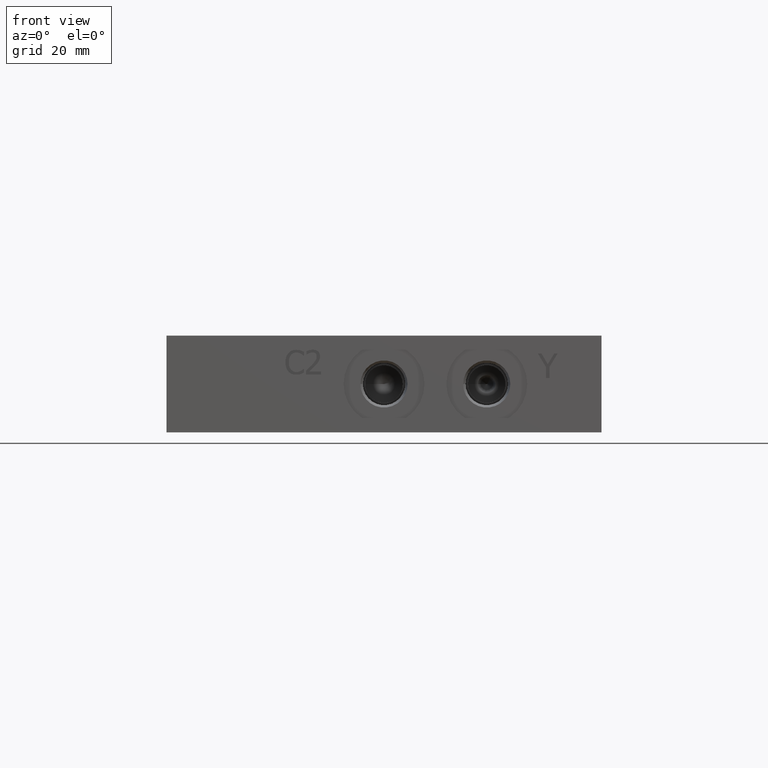
[diagram: clean part render]
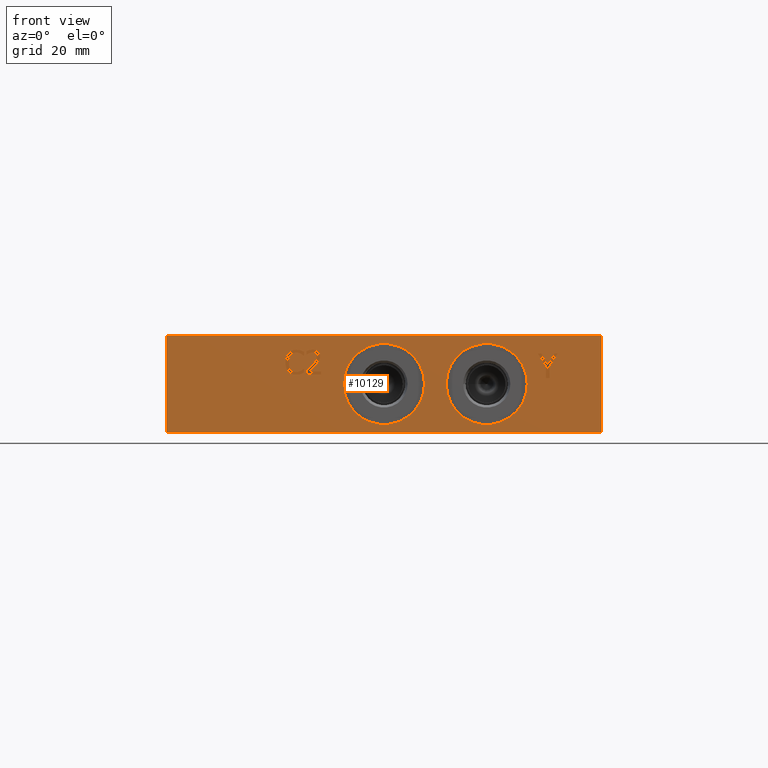
[diagram: same view with one face highlighted and labeled with its STEP entity id]
A machine part, front view. The second image highlights one B-rep face of the part: STEP entity #10129.
In plain terms, the highlighted planar face has unit normal (0, -1, 0).
Its self-contained STEP definition (entity closure, byte-faithful):
#80=CIRCLE('',#10452,10.6426);
#81=CIRCLE('',#10453,10.6426);
#91=CIRCLE('',#10471,10.6426);
#92=CIRCLE('',#10472,10.6426);
#357=FACE_BOUND('',#1801,.T.);
#358=FACE_BOUND('',#1802,.T.);
#359=FACE_BOUND('',#1803,.T.);
#360=FACE_BOUND('',#1804,.T.);
#361=FACE_BOUND('',#1805,.T.);
#534=B_SPLINE_CURVE_WITH_KNOTS('',2,(#15582,#15583,#15584,#15585),
 .UNSPECIFIED.,.F.,.F.,(3,1,3),(0.,1.,2.),.UNSPECIFIED.);
#536=B_SPLINE_CURVE_WITH_KNOTS('',2,(#15603,#15604,#15605,#15606),
 .UNSPECIFIED.,.F.,.F.,(3,1,3),(0.,1.,2.),.UNSPECIFIED.);
#538=B_SPLINE_CURVE_WITH_KNOTS('',2,(#15634,#15635,#15636,#15637),
 .UNSPECIFIED.,.F.,.F.,(3,1,3),(0.,1.,2.),.UNSPECIFIED.);
#540=B_SPLINE_CURVE_WITH_KNOTS('',2,(#15653,#15654,#15655,#15656),
 .UNSPECIFIED.,.F.,.F.,(3,1,3),(0.,1.,2.),.UNSPECIFIED.);
#542=B_SPLINE_CURVE_WITH_KNOTS('',2,(#15672,#15673,#15674,#15675),
 .UNSPECIFIED.,.F.,.F.,(3,1,3),(0.,1.,2.),.UNSPECIFIED.);
#544=B_SPLINE_CURVE_WITH_KNOTS('',2,(#15691,#15692,#15693,#15694),
 .UNSPECIFIED.,.F.,.F.,(3,1,3),(0.,1.,2.),.UNSPECIFIED.);
#546=B_SPLINE_CURVE_WITH_KNOTS('',2,(#15710,#15711,#15712,#15713),
 .UNSPECIFIED.,.F.,.F.,(3,1,3),(0.,1.,2.),.UNSPECIFIED.);
#548=B_SPLINE_CURVE_WITH_KNOTS('',2,(#15729,#15730,#15731,#15732),
 .UNSPECIFIED.,.F.,.F.,(3,1,3),(0.,1.,2.),.UNSPECIFIED.);
#550=B_SPLINE_CURVE_WITH_KNOTS('',2,(#15748,#15749,#15750,#15751),
 .UNSPECIFIED.,.F.,.F.,(3,1,3),(0.,1.,2.),.UNSPECIFIED.);
#552=B_SPLINE_CURVE_WITH_KNOTS('',2,(#15767,#15768,#15769,#15770),
 .UNSPECIFIED.,.F.,.F.,(3,1,3),(0.,1.,2.),.UNSPECIFIED.);
#554=B_SPLINE_CURVE_WITH_KNOTS('',2,(#15798,#15799,#15800,#15801),
 .UNSPECIFIED.,.F.,.F.,(3,1,3),(0.,1.,2.),.UNSPECIFIED.);
#556=B_SPLINE_CURVE_WITH_KNOTS('',2,(#15817,#15818,#15819,#15820),
 .UNSPECIFIED.,.F.,.F.,(3,1,3),(0.,1.,2.),.UNSPECIFIED.);
#558=B_SPLINE_CURVE_WITH_KNOTS('',2,(#15836,#15837,#15838,#15839),
 .UNSPECIFIED.,.F.,.F.,(3,1,3),(0.,1.,2.),.UNSPECIFIED.);
#560=B_SPLINE_CURVE_WITH_KNOTS('',2,(#15855,#15856,#15857,#15858),
 .UNSPECIFIED.,.F.,.F.,(3,1,3),(0.,1.,2.),.UNSPECIFIED.);
#562=B_SPLINE_CURVE_WITH_KNOTS('',2,(#15874,#15875,#15876,#15877),
 .UNSPECIFIED.,.F.,.F.,(3,1,3),(0.,1.,2.),.UNSPECIFIED.);
#564=B_SPLINE_CURVE_WITH_KNOTS('',2,(#15892,#15893,#15894,#15895),
 .UNSPECIFIED.,.F.,.F.,(3,1,3),(0.,1.,2.),.UNSPECIFIED.);
#566=B_SPLINE_CURVE_WITH_KNOTS('',2,(#15925,#15926,#15927,#15928),
 .UNSPECIFIED.,.F.,.F.,(3,1,3),(0.,1.,2.),.UNSPECIFIED.);
#568=B_SPLINE_CURVE_WITH_KNOTS('',2,(#15944,#15945,#15946,#15947),
 .UNSPECIFIED.,.F.,.F.,(3,1,3),(0.,1.,2.),.UNSPECIFIED.);
#570=B_SPLINE_CURVE_WITH_KNOTS('',2,(#15963,#15964,#15965,#15966),
 .UNSPECIFIED.,.F.,.F.,(3,1,3),(0.,1.,2.),.UNSPECIFIED.);
#572=B_SPLINE_CURVE_WITH_KNOTS('',2,(#15982,#15983,#15984,#15985),
 .UNSPECIFIED.,.F.,.F.,(3,1,3),(0.,1.,2.),.UNSPECIFIED.);
#574=B_SPLINE_CURVE_WITH_KNOTS('',2,(#16001,#16002,#16003,#16004),
 .UNSPECIFIED.,.F.,.F.,(3,1,3),(0.,1.,2.),.UNSPECIFIED.);
#576=B_SPLINE_CURVE_WITH_KNOTS('',2,(#16032,#16033,#16034,#16035),
 .UNSPECIFIED.,.F.,.F.,(3,1,3),(0.,1.,2.),.UNSPECIFIED.);
#578=B_SPLINE_CURVE_WITH_KNOTS('',2,(#16051,#16052,#16053,#16054),
 .UNSPECIFIED.,.F.,.F.,(3,1,3),(0.,1.,2.),.UNSPECIFIED.);
#580=B_SPLINE_CURVE_WITH_KNOTS('',2,(#16070,#16071,#16072,#16073),
 .UNSPECIFIED.,.F.,.F.,(3,1,3),(0.,1.,2.),.UNSPECIFIED.);
#582=B_SPLINE_CURVE_WITH_KNOTS('',2,(#16089,#16090,#16091,#16092),
 .UNSPECIFIED.,.F.,.F.,(3,1,3),(0.,1.,2.),.UNSPECIFIED.);
#584=B_SPLINE_CURVE_WITH_KNOTS('',2,(#16108,#16109,#16110,#16111),
 .UNSPECIFIED.,.F.,.F.,(3,1,3),(0.,1.,2.),.UNSPECIFIED.);
#586=B_SPLINE_CURVE_WITH_KNOTS('',2,(#16127,#16128,#16129,#16130),
 .UNSPECIFIED.,.F.,.F.,(3,1,3),(0.,1.,2.),.UNSPECIFIED.);
#1245=FACE_OUTER_BOUND('',#1800,.T.);
#1800=EDGE_LOOP('',(#8810,#8811,#8812,#8813));
#1801=EDGE_LOOP('',(#8814,#8815,#8816,#8817,#8818,#8819,#8820,#8821,#8822));
#1802=EDGE_LOOP('',(#8823,#8824,#8825,#8826,#8827,#8828,#8829,#8830,#8831,
#8832,#8833,#8834,#8835,#8836,#8837,#8838,#8839,#8840,#8841,#8842));
#1803=EDGE_LOOP('',(#8843,#8844,#8845,#8846,#8847,#8848,#8849,#8850,#8851,
#8852,#8853,#8854,#8855,#8856,#8857,#8858,#8859));
#1804=EDGE_LOOP('',(#8860,#8861));
#1805=EDGE_LOOP('',(#8862,#8863));
#2144=LINE('',#14609,#3110);
#2522=LINE('',#15520,#3488);
#2526=LINE('',#15528,#3492);
#2529=LINE('',#15534,#3495);
#2532=LINE('',#15540,#3498);
#2535=LINE('',#15546,#3501);
#2538=LINE('',#15552,#3504);
#2541=LINE('',#15558,#3507);
#2544=LINE('',#15564,#3510);
#2547=LINE('',#15569,#3513);
#2552=LINE('',#15615,#3518);
#2555=LINE('',#15621,#3521);
#2566=LINE('',#15779,#3532);
#2569=LINE('',#15785,#3535);
#2577=LINE('',#15904,#3543);
#2581=LINE('',#15912,#3547);
#2589=LINE('',#16013,#3555);
#2592=LINE('',#16019,#3558);
#2601=LINE('',#16139,#3567);
#2604=LINE('',#16144,#3570);
#2797=LINE('',#17270,#3763);
#2802=LINE('',#17279,#3768);
#2803=LINE('',#17280,#3769);
#3110=VECTOR('',#11234,10.);
#3488=VECTOR('',#11894,10.);
#3492=VECTOR('',#11900,10.);
#3495=VECTOR('',#11905,10.);
#3498=VECTOR('',#11910,10.);
#3501=VECTOR('',#11915,10.);
#3504=VECTOR('',#11920,10.);
#3507=VECTOR('',#11925,10.);
#3510=VECTOR('',#11930,10.);
#3513=VECTOR('',#11935,10.);
#3518=VECTOR('',#11944,10.);
#3521=VECTOR('',#11949,10.);
#3532=VECTOR('',#11962,10.);
#3535=VECTOR('',#11967,10.);
#3543=VECTOR('',#11979,10.);
#3547=VECTOR('',#11985,10.);
#3555=VECTOR('',#11995,10.);
#3558=VECTOR('',#12000,10.);
#3567=VECTOR('',#12011,10.);
#3570=VECTOR('',#12016,10.);
#3763=VECTOR('',#12897,10.);
#3768=VECTOR('',#12908,10.);
#3769=VECTOR('',#12909,10.);
#4056=VERTEX_POINT('',#14602);
#4059=VERTEX_POINT('',#14607);
#4322=VERTEX_POINT('',#15518);
#4323=VERTEX_POINT('',#15519);
#4326=VERTEX_POINT('',#15527);
#4328=VERTEX_POINT('',#15533);
#4330=VERTEX_POINT('',#15539);
#4332=VERTEX_POINT('',#15545);
#4334=VERTEX_POINT('',#15551);
#4336=VERTEX_POINT('',#15557);
#4338=VERTEX_POINT('',#15563);
#4340=VERTEX_POINT('',#15580);
#4341=VERTEX_POINT('',#15581);
#4344=VERTEX_POINT('',#15602);
#4346=VERTEX_POINT('',#15614);
#4348=VERTEX_POINT('',#15620);
#4350=VERTEX_POINT('',#15633);
#4352=VERTEX_POINT('',#15652);
#4354=VERTEX_POINT('',#15671);
#4356=VERTEX_POINT('',#15690);
#4358=VERTEX_POINT('',#15709);
#4360=VERTEX_POINT('',#15728);
#4362=VERTEX_POINT('',#15747);
#4364=VERTEX_POINT('',#15766);
#4366=VERTEX_POINT('',#15778);
#4368=VERTEX_POINT('',#15784);
#4370=VERTEX_POINT('',#15797);
#4372=VERTEX_POINT('',#15816);
#4374=VERTEX_POINT('',#15835);
#4376=VERTEX_POINT('',#15854);
#4378=VERTEX_POINT('',#15873);
#4380=VERTEX_POINT('',#15902);
#4381=VERTEX_POINT('',#15903);
#4384=VERTEX_POINT('',#15911);
#4386=VERTEX_POINT('',#15924);
#4388=VERTEX_POINT('',#15943);
#4390=VERTEX_POINT('',#15962);
#4392=VERTEX_POINT('',#15981);
#4394=VERTEX_POINT('',#16000);
#4396=VERTEX_POINT('',#16012);
#4398=VERTEX_POINT('',#16018);
#4400=VERTEX_POINT('',#16031);
#4402=VERTEX_POINT('',#16050);
#4404=VERTEX_POINT('',#16069);
#4406=VERTEX_POINT('',#16088);
#4408=VERTEX_POINT('',#16107);
#4410=VERTEX_POINT('',#16126);
#4412=VERTEX_POINT('',#16138);
#4516=VERTEX_POINT('',#16677);
#4517=VERTEX_POINT('',#16678);
#4528=VERTEX_POINT('',#16715);
#4529=VERTEX_POINT('',#16716);
#4729=VERTEX_POINT('',#17267);
#4730=VERTEX_POINT('',#17269);
#5164=EDGE_CURVE('',#4056,#4059,#2144,.T.);
#5558=EDGE_CURVE('',#4322,#4323,#2522,.T.);
#5562=EDGE_CURVE('',#4326,#4322,#2526,.T.);
#5565=EDGE_CURVE('',#4328,#4326,#2529,.T.);
#5568=EDGE_CURVE('',#4330,#4328,#2532,.T.);
#5571=EDGE_CURVE('',#4332,#4330,#2535,.T.);
#5574=EDGE_CURVE('',#4334,#4332,#2538,.T.);
#5577=EDGE_CURVE('',#4336,#4334,#2541,.T.);
#5580=EDGE_CURVE('',#4338,#4336,#2544,.T.);
#5583=EDGE_CURVE('',#4323,#4338,#2547,.T.);
#5585=EDGE_CURVE('',#4340,#4341,#534,.T.);
#5589=EDGE_CURVE('',#4344,#4340,#536,.T.);
#5592=EDGE_CURVE('',#4346,#4344,#2552,.T.);
#5595=EDGE_CURVE('',#4348,#4346,#2555,.T.);
#5598=EDGE_CURVE('',#4350,#4348,#538,.T.);
#5601=EDGE_CURVE('',#4352,#4350,#540,.T.);
#5604=EDGE_CURVE('',#4354,#4352,#542,.T.);
#5607=EDGE_CURVE('',#4356,#4354,#544,.T.);
#5610=EDGE_CURVE('',#4358,#4356,#546,.T.);
#5613=EDGE_CURVE('',#4360,#4358,#548,.T.);
#5616=EDGE_CURVE('',#4362,#4360,#550,.T.);
#5619=EDGE_CURVE('',#4364,#4362,#552,.T.);
#5622=EDGE_CURVE('',#4366,#4364,#2566,.T.);
#5625=EDGE_CURVE('',#4368,#4366,#2569,.T.);
#5628=EDGE_CURVE('',#4370,#4368,#554,.T.);
#5631=EDGE_CURVE('',#4372,#4370,#556,.T.);
#5634=EDGE_CURVE('',#4374,#4372,#558,.T.);
#5637=EDGE_CURVE('',#4376,#4374,#560,.T.);
#5640=EDGE_CURVE('',#4378,#4376,#562,.T.);
#5643=EDGE_CURVE('',#4341,#4378,#564,.T.);
#5645=EDGE_CURVE('',#4380,#4381,#2577,.T.);
#5649=EDGE_CURVE('',#4384,#4380,#2581,.T.);
#5652=EDGE_CURVE('',#4386,#4384,#566,.T.);
#5655=EDGE_CURVE('',#4388,#4386,#568,.T.);
#5658=EDGE_CURVE('',#4390,#4388,#570,.T.);
#5661=EDGE_CURVE('',#4392,#4390,#572,.T.);
#5664=EDGE_CURVE('',#4394,#4392,#574,.T.);
#5667=EDGE_CURVE('',#4396,#4394,#2589,.T.);
#5670=EDGE_CURVE('',#4398,#4396,#2592,.T.);
#5673=EDGE_CURVE('',#4400,#4398,#576,.T.);
#5676=EDGE_CURVE('',#4402,#4400,#578,.T.);
#5679=EDGE_CURVE('',#4404,#4402,#580,.T.);
#5682=EDGE_CURVE('',#4406,#4404,#582,.T.);
#5685=EDGE_CURVE('',#4408,#4406,#584,.T.);
#5688=EDGE_CURVE('',#4410,#4408,#586,.T.);
#5691=EDGE_CURVE('',#4412,#4410,#2601,.T.);
#5694=EDGE_CURVE('',#4381,#4412,#2604,.T.);
#5847=EDGE_CURVE('',#4516,#4517,#80,.T.);
#5848=EDGE_CURVE('',#4517,#4516,#81,.T.);
#5865=EDGE_CURVE('',#4528,#4529,#91,.T.);
#5866=EDGE_CURVE('',#4529,#4528,#92,.T.);
#6125=EDGE_CURVE('',#4729,#4730,#2797,.T.);
#6130=EDGE_CURVE('',#4729,#4056,#2802,.T.);
#6131=EDGE_CURVE('',#4730,#4059,#2803,.T.);
#8810=ORIENTED_EDGE('',*,*,#6130,.T.);
#8811=ORIENTED_EDGE('',*,*,#5164,.T.);
#8812=ORIENTED_EDGE('',*,*,#6131,.F.);
#8813=ORIENTED_EDGE('',*,*,#6125,.F.);
#8814=ORIENTED_EDGE('',*,*,#5558,.T.);
#8815=ORIENTED_EDGE('',*,*,#5583,.T.);
#8816=ORIENTED_EDGE('',*,*,#5580,.T.);
#8817=ORIENTED_EDGE('',*,*,#5577,.T.);
#8818=ORIENTED_EDGE('',*,*,#5574,.T.);
#8819=ORIENTED_EDGE('',*,*,#5571,.T.);
#8820=ORIENTED_EDGE('',*,*,#5568,.T.);
#8821=ORIENTED_EDGE('',*,*,#5565,.T.);
#8822=ORIENTED_EDGE('',*,*,#5562,.T.);
#8823=ORIENTED_EDGE('',*,*,#5585,.T.);
#8824=ORIENTED_EDGE('',*,*,#5643,.T.);
#8825=ORIENTED_EDGE('',*,*,#5640,.T.);
#8826=ORIENTED_EDGE('',*,*,#5637,.T.);
#8827=ORIENTED_EDGE('',*,*,#5634,.T.);
#8828=ORIENTED_EDGE('',*,*,#5631,.T.);
#8829=ORIENTED_EDGE('',*,*,#5628,.T.);
#8830=ORIENTED_EDGE('',*,*,#5625,.T.);
#8831=ORIENTED_EDGE('',*,*,#5622,.T.);
#8832=ORIENTED_EDGE('',*,*,#5619,.T.);
#8833=ORIENTED_EDGE('',*,*,#5616,.T.);
#8834=ORIENTED_EDGE('',*,*,#5613,.T.);
#8835=ORIENTED_EDGE('',*,*,#5610,.T.);
#8836=ORIENTED_EDGE('',*,*,#5607,.T.);
#8837=ORIENTED_EDGE('',*,*,#5604,.T.);
#8838=ORIENTED_EDGE('',*,*,#5601,.T.);
#8839=ORIENTED_EDGE('',*,*,#5598,.T.);
#8840=ORIENTED_EDGE('',*,*,#5595,.T.);
#8841=ORIENTED_EDGE('',*,*,#5592,.T.);
#8842=ORIENTED_EDGE('',*,*,#5589,.T.);
#8843=ORIENTED_EDGE('',*,*,#5645,.T.);
#8844=ORIENTED_EDGE('',*,*,#5694,.T.);
#8845=ORIENTED_EDGE('',*,*,#5691,.T.);
#8846=ORIENTED_EDGE('',*,*,#5688,.T.);
#8847=ORIENTED_EDGE('',*,*,#5685,.T.);
#8848=ORIENTED_EDGE('',*,*,#5682,.T.);
#8849=ORIENTED_EDGE('',*,*,#5679,.T.);
#8850=ORIENTED_EDGE('',*,*,#5676,.T.);
#8851=ORIENTED_EDGE('',*,*,#5673,.T.);
#8852=ORIENTED_EDGE('',*,*,#5670,.T.);
#8853=ORIENTED_EDGE('',*,*,#5667,.T.);
#8854=ORIENTED_EDGE('',*,*,#5664,.T.);
#8855=ORIENTED_EDGE('',*,*,#5661,.T.);
#8856=ORIENTED_EDGE('',*,*,#5658,.T.);
#8857=ORIENTED_EDGE('',*,*,#5655,.T.);
#8858=ORIENTED_EDGE('',*,*,#5652,.T.);
#8859=ORIENTED_EDGE('',*,*,#5649,.T.);
#8860=ORIENTED_EDGE('',*,*,#5847,.T.);
#8861=ORIENTED_EDGE('',*,*,#5848,.T.);
#8862=ORIENTED_EDGE('',*,*,#5865,.T.);
#8863=ORIENTED_EDGE('',*,*,#5866,.T.);
#9230=PLANE('',#10743);
#10129=ADVANCED_FACE('',(#1245,#357,#358,#359,#360,#361),#9230,.T.);
#10452=AXIS2_PLACEMENT_3D('',#16679,#12230,#12231);
#10453=AXIS2_PLACEMENT_3D('',#16680,#12232,#12233);
#10471=AXIS2_PLACEMENT_3D('',#16717,#12275,#12276);
#10472=AXIS2_PLACEMENT_3D('',#16718,#12277,#12278);
#10743=AXIS2_PLACEMENT_3D('',#17278,#12906,#12907);
#11234=DIRECTION('',(0.,0.,1.));
#11894=DIRECTION('',(1.,0.,0.));
#11900=DIRECTION('',(0.512401080946015,0.,0.858746256029892));
#11905=DIRECTION('',(0.505352400516575,0.,-0.862913061259438));
#11910=DIRECTION('',(1.,0.,0.));
#11915=DIRECTION('',(-0.50909944989754,0.,0.860707703064183));
#11920=DIRECTION('',(0.,0.,1.));
#11925=DIRECTION('',(-1.,0.,0.));
#11930=DIRECTION('',(0.,0.,-1.));
#11935=DIRECTION('',(-0.518329263750966,0.,-0.85518113539728));
#11944=DIRECTION('',(0.,0.,-1.));
#11949=DIRECTION('',(1.,0.,0.));
#11962=DIRECTION('',(-1.,0.,0.));
#11967=DIRECTION('',(0.,0.,-1.));
#11979=DIRECTION('',(0.,0.,-1.));
#11985=DIRECTION('',(1.,0.,0.));
#11995=DIRECTION('',(0.,0.,1.));
#12000=DIRECTION('',(-1.,0.,0.));
#12011=DIRECTION('',(0.,0.,1.));
#12016=DIRECTION('',(-1.,0.,0.));
#12230=DIRECTION('center_axis',(0.,1.,0.));
#12231=DIRECTION('ref_axis',(1.,0.,0.));
#12232=DIRECTION('center_axis',(0.,1.,0.));
#12233=DIRECTION('ref_axis',(1.,0.,0.));
#12275=DIRECTION('center_axis',(0.,1.,0.));
#12276=DIRECTION('ref_axis',(1.,0.,0.));
#12277=DIRECTION('center_axis',(0.,1.,0.));
#12278=DIRECTION('ref_axis',(1.,0.,0.));
#12897=DIRECTION('',(0.,0.,1.));
#12906=DIRECTION('center_axis',(0.,-1.,0.));
#12907=DIRECTION('ref_axis',(1.,0.,0.));
#12908=DIRECTION('',(1.,0.,0.));
#12909=DIRECTION('',(1.,0.,0.));
#14602=CARTESIAN_POINT('',(114.3,0.,0.));
#14607=CARTESIAN_POINT('',(114.3,0.,25.4));
#14609=CARTESIAN_POINT('',(114.3,0.,0.));
#15518=CARTESIAN_POINT('',(101.83783162259,0.,20.6374999046326));
#15519=CARTESIAN_POINT('',(102.733212484345,0.,20.6374999046326));
#15520=CARTESIAN_POINT('',(50.9189158112948,0.,20.6374999046326));
#15527=CARTESIAN_POINT('',(100.170570707597,0.,17.8432941119134));
#15528=CARTESIAN_POINT('',(83.0947097055361,0.,-10.7745840489476));
#15533=CARTESIAN_POINT('',(98.5341849947337,0.,20.6374999046326));
#15534=CARTESIAN_POINT('',(90.4520540604594,0.,34.4381197074974));
#15539=CARTESIAN_POINT('',(97.5976371968058,0.,20.6374999046326));
#15540=CARTESIAN_POINT('',(48.7988185984029,0.,20.6374999046326));
#15545=CARTESIAN_POINT('',(99.7434637448056,0.,17.009663654417));
#15546=CARTESIAN_POINT('',(90.5442927648612,0.,32.5622189082798));
#15551=CARTESIAN_POINT('',(99.7434637448056,0.,14.2875));
#15552=CARTESIAN_POINT('',(99.7434637448056,0.,7.14375));
#15557=CARTESIAN_POINT('',(100.587385936345,0.,14.2875));
#15558=CARTESIAN_POINT('',(50.2936929681725,0.,14.2875));
#15563=CARTESIAN_POINT('',(100.587385936345,0.,17.0971433937839));
#15564=CARTESIAN_POINT('',(100.587385936345,0.,8.54857169689197));
#15569=CARTESIAN_POINT('',(84.3588467162756,0.,-9.67800045131883));
#15580=CARTESIAN_POINT('',(35.2118820268486,0.,15.2665012145279));
#15581=CARTESIAN_POINT('',(34.0797912821005,0.,15.0812500017509));
#15582=CARTESIAN_POINT('Ctrl Pts',(35.2118820268486,0.,15.2665012145279));
#15583=CARTESIAN_POINT('Ctrl Pts',(34.9340052076831,0.,15.1738756081394));
#15584=CARTESIAN_POINT('Ctrl Pts',(34.4605854416976,0.,15.0812500017509));
#15585=CARTESIAN_POINT('Ctrl Pts',(34.0797912821005,0.,15.0812500017509));
#15602=CARTESIAN_POINT('',(36.0558042183881,0.,15.6267119060387));
#15603=CARTESIAN_POINT('Ctrl Pts',(36.0558042183881,0.,15.6267119060387));
#15604=CARTESIAN_POINT('Ctrl Pts',(35.8448236705032,0.,15.5289404326286));
#15605=CARTESIAN_POINT('Ctrl Pts',(35.4743212449493,0.,15.3488350868732));
#15606=CARTESIAN_POINT('Ctrl Pts',(35.2118820268486,0.,15.2665012145279));
#15614=CARTESIAN_POINT('',(36.0558042183881,0.,16.6353018422688));
#15615=CARTESIAN_POINT('',(36.0558042183881,0.,8.3176509211344));
#15620=CARTESIAN_POINT('',(35.9940538141291,0.,16.6353018422688));
#15621=CARTESIAN_POINT('',(17.9970269070645,0.,16.6353018422688));
#15633=CARTESIAN_POINT('',(35.3199452343018,0.,16.1258610071322));
#15634=CARTESIAN_POINT('Ctrl Pts',(35.3199452343018,0.,16.1258610071322));
#15635=CARTESIAN_POINT('Ctrl Pts',(35.551509250273,0.,16.2596535496933));
#15636=CARTESIAN_POINT('Ctrl Pts',(35.896282340719,0.,16.5375303688587));
#15637=CARTESIAN_POINT('Ctrl Pts',(35.9940538141291,0.,16.6353018422688));
#15652=CARTESIAN_POINT('',(34.0900830161436,0.,15.8119631188156));
#15653=CARTESIAN_POINT('Ctrl Pts',(34.0900830161436,0.,15.8119631188156));
#15654=CARTESIAN_POINT('Ctrl Pts',(34.455439574676,0.,15.8119631188156));
#15655=CARTESIAN_POINT('Ctrl Pts',(35.0780894842874,0.,15.992068464571));
#15656=CARTESIAN_POINT('Ctrl Pts',(35.3199452343018,0.,16.1258610071322));
#15671=CARTESIAN_POINT('',(32.705844787338,0.,16.4449047624703));
#15672=CARTESIAN_POINT('Ctrl Pts',(32.705844787338,0.,16.4449047624703));
#15673=CARTESIAN_POINT('Ctrl Pts',(32.9734298724603,0.,16.1310068741537));
#15674=CARTESIAN_POINT('Ctrl Pts',(33.6887053884602,0.,15.8119631188156));
#15675=CARTESIAN_POINT('Ctrl Pts',(34.0900830161436,0.,15.8119631188156));
#15690=CARTESIAN_POINT('',(32.1192159468776,0.,18.3643131615205));
#15691=CARTESIAN_POINT('Ctrl Pts',(32.1192159468776,0.,18.3643131615205));
#15692=CARTESIAN_POINT('Ctrl Pts',(32.1192159468776,0.,17.7107880497795));
#15693=CARTESIAN_POINT('Ctrl Pts',(32.4331138351941,0.,16.7690943848299));
#15694=CARTESIAN_POINT('Ctrl Pts',(32.705844787338,0.,16.4449047624703));
#15709=CARTESIAN_POINT('',(32.6852613192517,0.,20.2837215605707));
#15710=CARTESIAN_POINT('Ctrl Pts',(32.6852613192517,0.,20.2837215605707));
#15711=CARTESIAN_POINT('Ctrl Pts',(32.4176762341294,0.,19.959531938211));
#15712=CARTESIAN_POINT('Ctrl Pts',(32.1192159468776,0.,18.9766713370888));
#15713=CARTESIAN_POINT('Ctrl Pts',(32.1192159468776,0.,18.3643131615205));
#15728=CARTESIAN_POINT('',(34.0900830161436,0.,20.9372466723116));
#15729=CARTESIAN_POINT('Ctrl Pts',(34.0900830161436,0.,20.9372466723116));
#15730=CARTESIAN_POINT('Ctrl Pts',(33.6835595214386,0.,20.9372466723116));
#15731=CARTESIAN_POINT('Ctrl Pts',(32.9579922713955,0.,20.6027653159088));
#15732=CARTESIAN_POINT('Ctrl Pts',(32.6852613192517,0.,20.2837215605707));
#15747=CARTESIAN_POINT('',(35.2736324311076,0.,20.6336405180383));
#15748=CARTESIAN_POINT('Ctrl Pts',(35.2736324311076,0.,20.6336405180383));
#15749=CARTESIAN_POINT('Ctrl Pts',(35.0317766810932,0.,20.7674330605994));
#15750=CARTESIAN_POINT('Ctrl Pts',(34.4605854416976,0.,20.9372466723116));
#15751=CARTESIAN_POINT('Ctrl Pts',(34.0900830161436,0.,20.9372466723116));
#15766=CARTESIAN_POINT('',(35.9889079471075,0.,20.1036162148153));
#15767=CARTESIAN_POINT('Ctrl Pts',(35.9889079471075,0.,20.1036162148153));
#15768=CARTESIAN_POINT('Ctrl Pts',(35.8756988726327,0.,20.2065335552469));
#15769=CARTESIAN_POINT('Ctrl Pts',(35.5257799151651,0.,20.4947021084555));
#15770=CARTESIAN_POINT('Ctrl Pts',(35.2736324311076,0.,20.6336405180383));
#15778=CARTESIAN_POINT('',(36.0558042183881,0.,20.1036162148153));
#15779=CARTESIAN_POINT('',(18.027902109194,0.,20.1036162148153));
#15784=CARTESIAN_POINT('',(36.0558042183881,0.,21.1224978850886));
#15785=CARTESIAN_POINT('',(36.0558042183881,0.,10.5612489425443));
#15797=CARTESIAN_POINT('',(35.2118820268486,0.,21.4930003106425));
#15798=CARTESIAN_POINT('Ctrl Pts',(35.2118820268486,0.,21.4930003106425));
#15799=CARTESIAN_POINT('Ctrl Pts',(35.4177167077119,0.,21.4261040393619));
#15800=CARTESIAN_POINT('Ctrl Pts',(35.8448236705032,0.,21.2357069595634));
#15801=CARTESIAN_POINT('Ctrl Pts',(36.0558042183881,0.,21.1224978850886));
#15816=CARTESIAN_POINT('',(34.0952288831652,0.,21.6576680553331));
#15817=CARTESIAN_POINT('Ctrl Pts',(34.0952288831652,0.,21.6576680553331));
#15818=CARTESIAN_POINT('Ctrl Pts',(34.4142726385033,0.,21.6576680553331));
#15819=CARTESIAN_POINT('Ctrl Pts',(34.9751721438558,0.,21.5650424489447));
#15820=CARTESIAN_POINT('Ctrl Pts',(35.2118820268486,0.,21.4930003106425));
#15835=CARTESIAN_POINT('',(32.0317362075107,0.,20.7828706616641));
#15836=CARTESIAN_POINT('Ctrl Pts',(32.0317362075107,0.,20.7828706616641));
#15837=CARTESIAN_POINT('Ctrl Pts',(32.4125303671078,0.,21.2099776244555));
#15838=CARTESIAN_POINT('Ctrl Pts',(33.4519955054674,0.,21.6576680553331));
#15839=CARTESIAN_POINT('Ctrl Pts',(34.0952288831652,0.,21.6576680553331));
#15854=CARTESIAN_POINT('',(31.239272686187,0.,18.3643131615205));
#15855=CARTESIAN_POINT('Ctrl Pts',(31.239272686187,0.,18.3643131615205));
#15856=CARTESIAN_POINT('Ctrl Pts',(31.239272686187,0.,19.1619225498657));
#15857=CARTESIAN_POINT('Ctrl Pts',(31.645796180892,0.,20.3454719648296));
#15858=CARTESIAN_POINT('Ctrl Pts',(32.0317362075107,0.,20.7828706616641));
#15873=CARTESIAN_POINT('',(32.0368820745323,0.,15.9148804592473));
#15874=CARTESIAN_POINT('Ctrl Pts',(32.0368820745323,0.,15.9148804592473));
#15875=CARTESIAN_POINT('Ctrl Pts',(31.6560879149352,0.,16.3265498209739));
#15876=CARTESIAN_POINT('Ctrl Pts',(31.239272686187,0.,17.5615579061536));
#15877=CARTESIAN_POINT('Ctrl Pts',(31.239272686187,0.,18.3643131615205));
#15892=CARTESIAN_POINT('Ctrl Pts',(34.0797912821005,0.,15.0812500017509));
#15893=CARTESIAN_POINT('Ctrl Pts',(33.4622872395106,0.,15.0812500017509));
#15894=CARTESIAN_POINT('Ctrl Pts',(32.4176762341294,0.,15.4980652304991));
#15895=CARTESIAN_POINT('Ctrl Pts',(32.0368820745323,0.,15.9148804592473));
#15902=CARTESIAN_POINT('',(40.5790213303589,0.,15.930318060312));
#15903=CARTESIAN_POINT('',(40.5790213303589,0.,15.1944590762258));
#15904=CARTESIAN_POINT('',(40.5790213303589,0.,7.96515903015601));
#15911=CARTESIAN_POINT('',(37.46062591528,0.,15.930318060312));
#15912=CARTESIAN_POINT('',(18.73031295764,0.,15.930318060312));
#15924=CARTESIAN_POINT('',(39.1381785643159,0.,17.5769955072184));
#15925=CARTESIAN_POINT('Ctrl Pts',(39.1381785643159,0.,17.5769955072184));
#15926=CARTESIAN_POINT('Ctrl Pts',(38.7368009366325,0.,17.1395968103839));
#15927=CARTESIAN_POINT('Ctrl Pts',(37.7539403355102,0.,16.2030490124559));
#15928=CARTESIAN_POINT('Ctrl Pts',(37.46062591528,0.,15.930318060312));
#15943=CARTESIAN_POINT('',(39.9872466228769,0.,18.6627734487722));
#15944=CARTESIAN_POINT('Ctrl Pts',(39.987246622877,0.,18.6627734487722));
#15945=CARTESIAN_POINT('Ctrl Pts',(39.8328706122295,0.,18.3848966296068));
#15946=CARTESIAN_POINT('Ctrl Pts',(39.3851801813518,0.,17.8394347253191));
#15947=CARTESIAN_POINT('Ctrl Pts',(39.1381785643159,0.,17.5769955072184));
#15962=CARTESIAN_POINT('',(40.3165821122582,0.,19.9338026031031));
#15963=CARTESIAN_POINT('Ctrl Pts',(40.3165821122582,0.,19.9338026031031));
#15964=CARTESIAN_POINT('Ctrl Pts',(40.3165821122582,0.,19.5581543105276));
#15965=CARTESIAN_POINT('Ctrl Pts',(40.1416226335244,0.,18.9303585338945));
#15966=CARTESIAN_POINT('Ctrl Pts',(39.987246622877,0.,18.6627734487722));
#15981=CARTESIAN_POINT('',(38.4229030483159,0.,21.6782515234195));
#15982=CARTESIAN_POINT('Ctrl Pts',(38.4229030483159,0.,21.6782515234195));
#15983=CARTESIAN_POINT('Ctrl Pts',(39.3131380430497,0.,21.6782515234195));
#15984=CARTESIAN_POINT('Ctrl Pts',(40.3165821122582,0.,20.7365578584699));
#15985=CARTESIAN_POINT('Ctrl Pts',(40.3165821122582,0.,19.9338026031031));
#16000=CARTESIAN_POINT('',(36.7968090694959,0.,21.2974573638224));
#16001=CARTESIAN_POINT('Ctrl Pts',(36.7968090694959,0.,21.2974573638224));
#16002=CARTESIAN_POINT('Ctrl Pts',(37.0592482875966,0.,21.4261040393619));
#16003=CARTESIAN_POINT('Ctrl Pts',(38.0009419525462,0.,21.6782515234195));
#16004=CARTESIAN_POINT('Ctrl Pts',(38.4229030483159,0.,21.6782515234195));
#16012=CARTESIAN_POINT('',(36.7968090694959,0.,20.3917847680239));
#16013=CARTESIAN_POINT('',(36.7968090694959,0.,10.1958923840119));
#16018=CARTESIAN_POINT('',(36.8431218726902,0.,20.3917847680239));
#16019=CARTESIAN_POINT('',(18.4215609363451,0.,20.3917847680239));
#16031=CARTESIAN_POINT('',(37.46062591528,0.,20.7417037254915));
#16032=CARTESIAN_POINT('Ctrl Pts',(37.46062591528,0.,20.7417037254915));
#16033=CARTESIAN_POINT('Ctrl Pts',(37.2805205695247,0.,20.6696615871893));
#16034=CARTESIAN_POINT('Ctrl Pts',(36.9460392131218,0.,20.463826906326));
#16035=CARTESIAN_POINT('Ctrl Pts',(36.8431218726902,0.,20.3917847680239));
#16050=CARTESIAN_POINT('',(38.3611526440569,0.,20.9423925393332));
#16051=CARTESIAN_POINT('Ctrl Pts',(38.3611526440569,0.,20.9423925393332));
#16052=CARTESIAN_POINT('Ctrl Pts',(38.1347344951073,0.,20.9423925393332));
#16053=CARTESIAN_POINT('Ctrl Pts',(37.6716064631649,0.,20.8291834648584));
#16054=CARTESIAN_POINT('Ctrl Pts',(37.46062591528,0.,20.7417037254915));
#16069=CARTESIAN_POINT('',(39.1381785643159,0.,20.6850991882541));
#16070=CARTESIAN_POINT('Ctrl Pts',(39.1381785643159,0.,20.6850991882541));
#16071=CARTESIAN_POINT('Ctrl Pts',(38.98894842069,0.,20.8137458637936));
#16072=CARTESIAN_POINT('Ctrl Pts',(38.5978625270497,0.,20.9423925393332));
#16073=CARTESIAN_POINT('Ctrl Pts',(38.3611526440569,0.,20.9423925393332));
#16088=CARTESIAN_POINT('',(39.4520764526324,0.,19.8874897999088));
#16089=CARTESIAN_POINT('Ctrl Pts',(39.4520764526324,0.,19.8874897999088));
#16090=CARTESIAN_POINT('Ctrl Pts',(39.4520764526324,0.,20.1550748850311));
#16091=CARTESIAN_POINT('Ctrl Pts',(39.2874087079418,0.,20.5564525127145));
#16092=CARTESIAN_POINT('Ctrl Pts',(39.1381785643159,0.,20.6850991882541));
#16107=CARTESIAN_POINT('',(38.1964848993663,0.,17.6233083104126));
#16108=CARTESIAN_POINT('Ctrl Pts',(38.1964848993663,0.,17.6233083104126));
#16109=CARTESIAN_POINT('Ctrl Pts',(38.9220521494094,0.,18.4209176987579));
#16110=CARTESIAN_POINT('Ctrl Pts',(39.4520764526324,0.,19.3780489647722));
#16111=CARTESIAN_POINT('Ctrl Pts',(39.4520764526324,0.,19.8874897999088));
#16126=CARTESIAN_POINT('',(36.6630165269348,0.,16.0949858050027));
#16127=CARTESIAN_POINT('Ctrl Pts',(36.6630165269348,0.,16.0949858050027));
#16128=CARTESIAN_POINT('Ctrl Pts',(37.0849776227045,0.,16.4912175656645));
#16129=CARTESIAN_POINT('Ctrl Pts',(37.8362742078556,0.,17.2270765497508));
#16130=CARTESIAN_POINT('Ctrl Pts',(38.1964848993663,0.,17.6233083104126));
#16138=CARTESIAN_POINT('',(36.6630165269348,0.,15.1944590762258));
#16139=CARTESIAN_POINT('',(36.6630165269348,0.,7.59722953811288));
#16144=CARTESIAN_POINT('',(20.2895106651795,0.,15.1944590762258));
#16677=CARTESIAN_POINT('',(94.7928,0.,12.7));
#16678=CARTESIAN_POINT('',(73.5076,0.,12.7));
#16679=CARTESIAN_POINT('Origin',(84.1502,0.,12.7));
#16680=CARTESIAN_POINT('Origin',(84.1502,0.,12.7));
#16715=CARTESIAN_POINT('',(67.7926,0.,12.7));
#16716=CARTESIAN_POINT('',(46.5074,0.,12.7));
#16717=CARTESIAN_POINT('Origin',(57.15,0.,12.7));
#16718=CARTESIAN_POINT('Origin',(57.15,0.,12.7));
#17267=CARTESIAN_POINT('',(0.,0.,0.));
#17269=CARTESIAN_POINT('',(0.,0.,25.4));
#17270=CARTESIAN_POINT('',(0.,0.,0.));
#17278=CARTESIAN_POINT('Origin',(0.,0.,0.));
#17279=CARTESIAN_POINT('',(0.,0.,0.));
#17280=CARTESIAN_POINT('',(0.,0.,25.4));